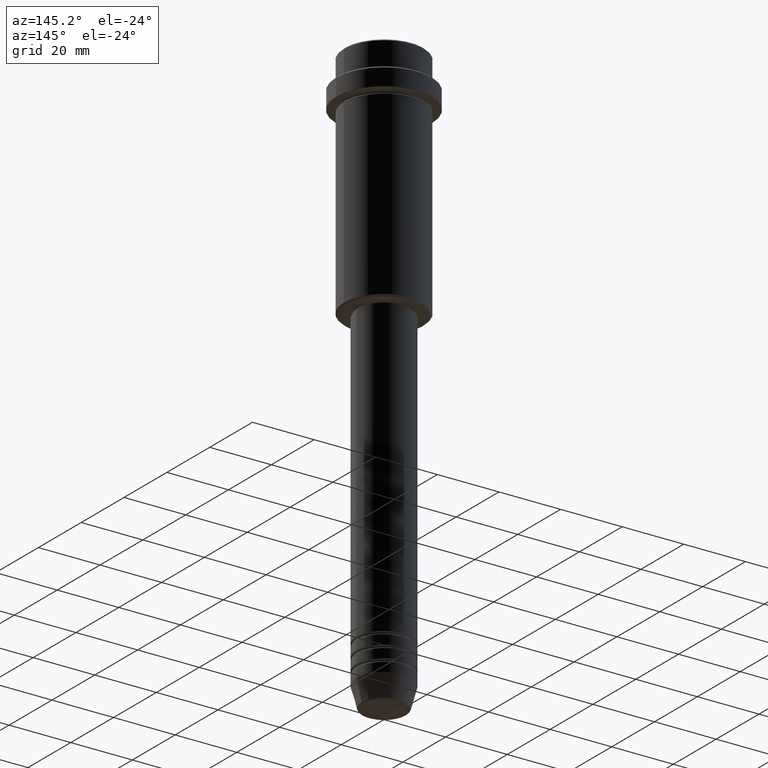
[diagram: clean part render]
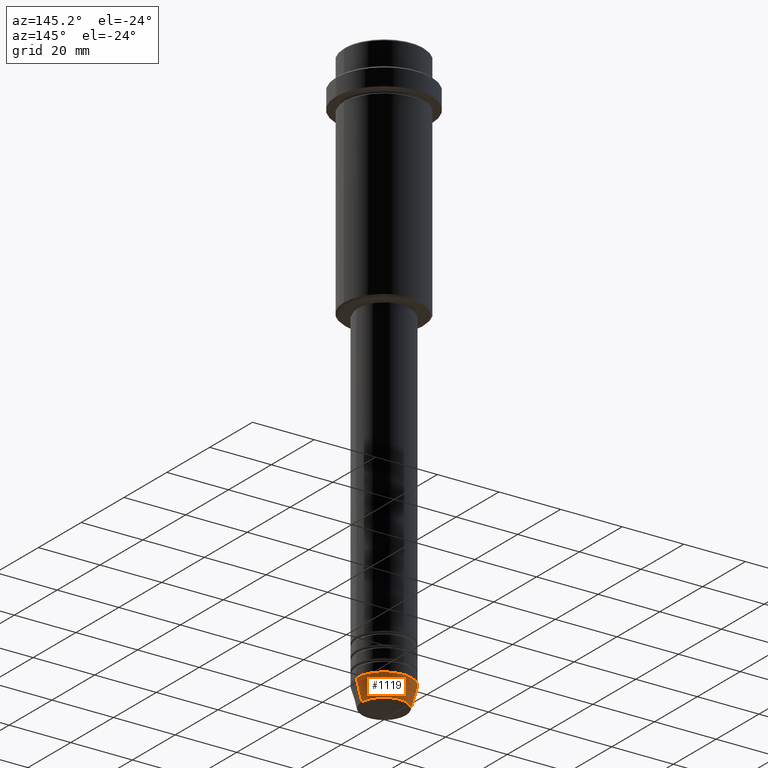
[diagram: same view with one face highlighted and labeled with its STEP entity id]
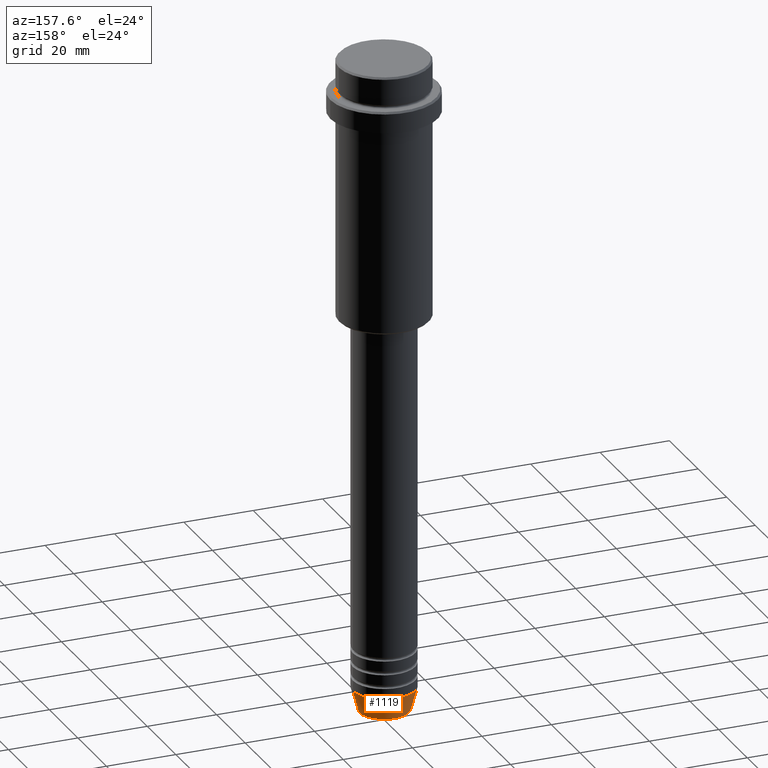
[diagram: same view with one face highlighted and labeled with its STEP entity id]
A machine part, auxiliary view. The second image highlights one B-rep face of the part: STEP entity #1119.
A second angle (auxiliary view) of the same face is appended — the face is thin or edge-on in the first view.
In plain terms, the highlighted conical surface has half-angle 15 deg.
Its self-contained STEP definition (entity closure, byte-faithful):
#14 = EDGE_LOOP ( 'NONE', ( #979, #1248, #562, #46 ) ) ;
#46 = ORIENTED_EDGE ( 'NONE', *, *, #854, .F. ) ;
#55 = DIRECTION ( 'NONE',  ( 1.000000000000000000, 0.000000000000000000, 0.000000000000000000 ) ) ;
#90 = FACE_OUTER_BOUND ( 'NONE', #14, .T. ) ;
#110 = AXIS2_PLACEMENT_3D ( 'NONE', #543, #645, #1196 ) ;
#352 = LINE ( 'NONE', #1226, #965 ) ;
#536 = CARTESIAN_POINT ( 'NONE',  ( 0.000000000000000000, 0.000000000000000000, -183.0000000000000000 ) ) ;
#543 = CARTESIAN_POINT ( 'NONE',  ( 0.000000000000000000, 0.000000000000000000, -183.0000000000000000 ) ) ;
#548 = CIRCLE ( 'NONE', #1310, 9.000000000000000000 ) ;
#562 = ORIENTED_EDGE ( 'NONE', *, *, #1169, .F. ) ;
#587 = DIRECTION ( 'NONE',  ( 0.2588190451025213501, 0.000000000000000000, 0.9659258262890680902 ) ) ;
#631 = DIRECTION ( 'NONE',  ( -0.000000000000000000, -0.000000000000000000, 1.000000000000000000 ) ) ;
#636 = CONICAL_SURFACE ( 'NONE', #110, 9.000000000000000000, 0.2617993877991500740 ) ;
#645 = DIRECTION ( 'NONE',  ( -0.000000000000000000, -0.000000000000000000, 1.000000000000000000 ) ) ;
#706 = CARTESIAN_POINT ( 'NONE',  ( 0.000000000000000000, 0.000000000000000000, -189.6294095225512706 ) ) ;
#715 = DIRECTION ( 'NONE',  ( -0.000000000000000000, -0.000000000000000000, 1.000000000000000000 ) ) ;
#800 = CIRCLE ( 'NONE', #900, 7.223655072137188604 ) ;
#830 = VERTEX_POINT ( 'NONE', #1132 ) ;
#854 = EDGE_CURVE ( 'NONE', #1145, #830, #352, .T. ) ;
#857 = CARTESIAN_POINT ( 'NONE',  ( -9.000000000000000000, 1.102182119232617714E-15, -183.0000000000000000 ) ) ;
#874 = DIRECTION ( 'NONE',  ( -0.2588190451025213501, 3.169619151431772337E-17, 0.9659258262890680902 ) ) ;
#900 = AXIS2_PLACEMENT_3D ( 'NONE', #706, #715, #55 ) ;
#965 = VECTOR ( 'NONE', #587, 1000.000000000000000 ) ;
#979 = ORIENTED_EDGE ( 'NONE', *, *, #1038, .T. ) ;
#989 = CARTESIAN_POINT ( 'NONE',  ( 7.223655072137188604, 0.000000000000000000, -189.6294095225512706 ) ) ;
#1038 = EDGE_CURVE ( 'NONE', #1145, #1379, #800, .T. ) ;
#1080 = DIRECTION ( 'NONE',  ( 1.000000000000000000, 0.000000000000000000, 0.000000000000000000 ) ) ;
#1087 = LINE ( 'NONE', #857, #1170 ) ;
#1119 = ADVANCED_FACE ( 'NONE', ( #90 ), #636, .T. ) ;
#1132 = CARTESIAN_POINT ( 'NONE',  ( 9.000000000000000000, 0.000000000000000000, -183.0000000000000000 ) ) ;
#1145 = VERTEX_POINT ( 'NONE', #989 ) ;
#1154 = EDGE_CURVE ( 'NONE', #1379, #1195, #1087, .T. ) ;
#1169 = EDGE_CURVE ( 'NONE', #830, #1195, #548, .T. ) ;
#1170 = VECTOR ( 'NONE', #874, 1000.000000000000000 ) ;
#1195 = VERTEX_POINT ( 'NONE', #1405 ) ;
#1196 = DIRECTION ( 'NONE',  ( 1.000000000000000000, 0.000000000000000000, 0.000000000000000000 ) ) ;
#1226 = CARTESIAN_POINT ( 'NONE',  ( 9.000000000000000000, 0.000000000000000000, -183.0000000000000000 ) ) ;
#1248 = ORIENTED_EDGE ( 'NONE', *, *, #1154, .T. ) ;
#1310 = AXIS2_PLACEMENT_3D ( 'NONE', #536, #631, #1080 ) ;
#1316 = CARTESIAN_POINT ( 'NONE',  ( -7.223655072137189492, 9.934123627281765110E-16, -189.6294095225512706 ) ) ;
#1379 = VERTEX_POINT ( 'NONE', #1316 ) ;
#1405 = CARTESIAN_POINT ( 'NONE',  ( -9.000000000000000000, 1.102182119232617714E-15, -183.0000000000000000 ) ) ;